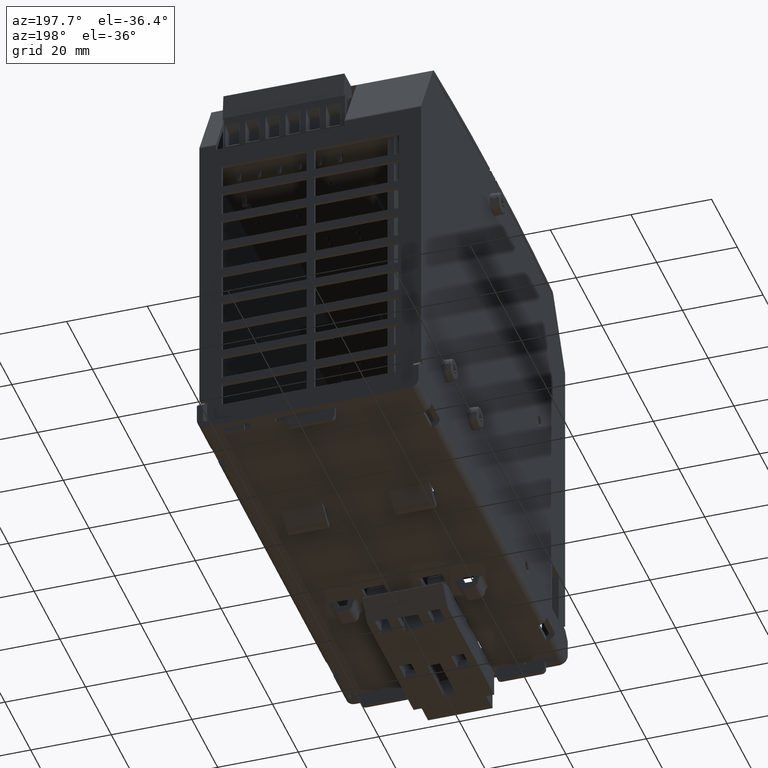
[diagram: clean part render]
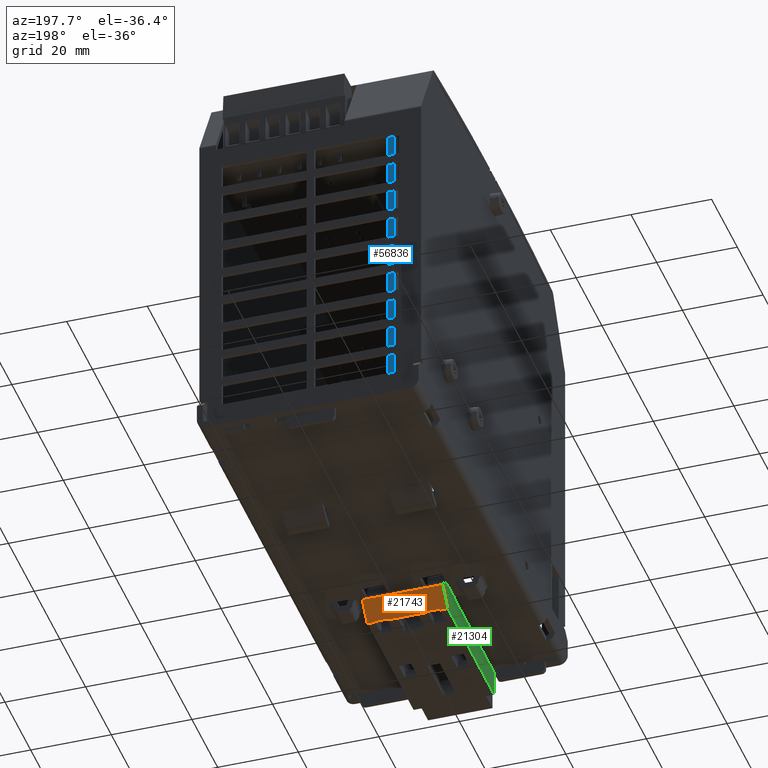
[diagram: same view with three faces highlighted in distinct colors, each labeled with its STEP entity id]
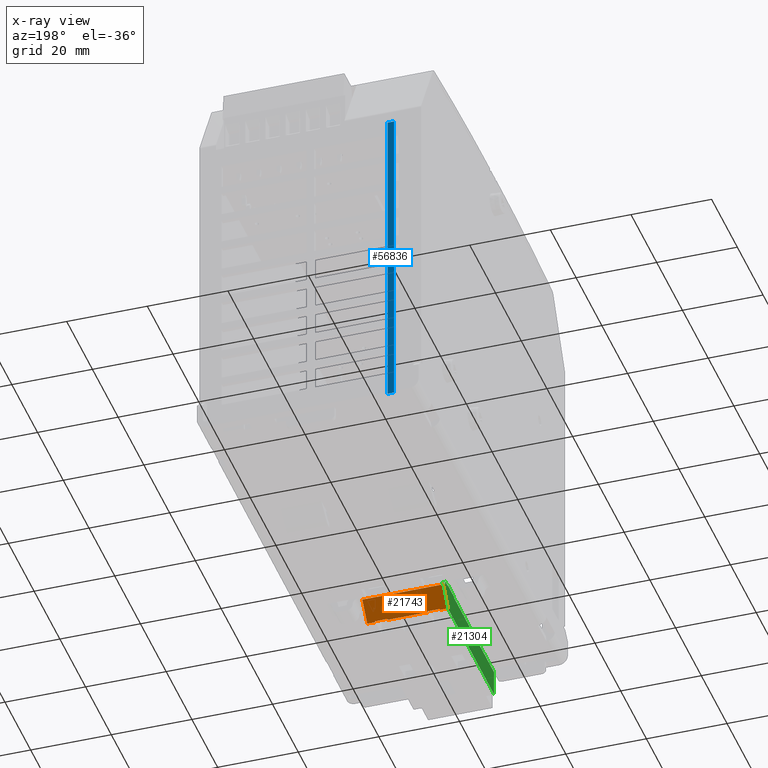
[diagram: x-ray of the same camera — body ghosted, the three highlighted faces saturated]
A machine part, auxiliary view with three faces highlighted in distinct colors.
The next image is the same camera in x-ray (body ghosted, the three faces saturated) — at least one of them is partly hidden behind the body in this view.
Their STEP definitions:

[orange] entity #21743 — the highlighted planar face has unit normal (0, -0.7431, 0.6691).
#20894=CARTESIAN_POINT('',(0.393700787401574,-0.773622047244094,-0.267716535433069));
#20895=VERTEX_POINT('',#20894);
#20902=CARTESIAN_POINT('',(0.393700787401574,-0.62007874015748,-0.097189417014413));
#20903=VERTEX_POINT('',#20902);
#20904=CARTESIAN_POINT('',(0.393700787401574,-0.773622047244094,-0.267716535433069));
#20905=DIRECTION('',(0.0,0.669130606358859,0.743144825477394));
#20906=VECTOR('',#20905,0.229466871829606);
#20907=LINE('',#20904,#20906);
#20908=EDGE_CURVE('',#20895,#20903,#20907,.T.);
#21223=CARTESIAN_POINT('',(-0.393700787401576,-0.62007874015748,-0.097189417014413));
#21224=VERTEX_POINT('',#21223);
#21232=CARTESIAN_POINT('',(-0.393700787401576,-0.773622047244094,-0.267716535433069));
#21233=VERTEX_POINT('',#21232);
#21234=CARTESIAN_POINT('',(-0.393700787401576,-0.62007874015748,-0.097189417014413));
#21235=DIRECTION('',(0.0,-0.669130606358859,-0.743144825477394));
#21236=VECTOR('',#21235,0.229466871829606);
#21237=LINE('',#21234,#21236);
#21238=EDGE_CURVE('',#21224,#21233,#21237,.T.);
#21654=CARTESIAN_POINT('',(0.393700787401574,-0.62007874015748,-0.097189417014413));
#21655=DIRECTION('',(-1.0,0.0,0.0));
#21656=VECTOR('',#21655,0.78740157480315);
#21657=LINE('',#21654,#21656);
#21658=EDGE_CURVE('',#20903,#21224,#21657,.T.);
#21663=CARTESIAN_POINT('',(0.393700787401574,-0.62007874015748,-0.097189417014413));
#21664=DIRECTION('',(5.500377E-017,-0.743144825477395,0.669130606358858));
#21665=DIRECTION('',(0.0,0.669130606358858,0.743144825477395));
#21666=AXIS2_PLACEMENT_3D('',#21663,#21664,#21665);
#21667=PLANE('',#21666);
#21668=CARTESIAN_POINT('',(-0.196850393700789,-0.76771653543307,-0.261157800109275));
#21669=VERTEX_POINT('',#21668);
#21670=CARTESIAN_POINT('',(-0.196850393700789,-0.773622047244094,-0.267716535433069));
#21671=VERTEX_POINT('',#21670);
#21672=CARTESIAN_POINT('',(-0.196850393700789,-0.76771653543307,-0.261157800109275));
#21673=DIRECTION('',(0.0,-0.669130606358885,-0.74314482547737));
#21674=VECTOR('',#21673,0.008825648916523);
#21675=LINE('',#21672,#21674);
#21676=EDGE_CURVE('',#21669,#21671,#21675,.T.);
#21677=ORIENTED_EDGE('',*,*,#21676,.F.);
#21678=CARTESIAN_POINT('',(-0.314960629921261,-0.76771653543307,-0.261157800109274));
#21679=VERTEX_POINT('',#21678);
#21680=CARTESIAN_POINT('',(-0.314960629921261,-0.76771653543307,-0.261157800109274));
#21681=DIRECTION('',(1.0,0.0,0.0));
#21682=VECTOR('',#21681,0.118110236220472);
#21683=LINE('',#21680,#21682);
#21684=EDGE_CURVE('',#21679,#21669,#21683,.T.);
#21685=ORIENTED_EDGE('',*,*,#21684,.F.);
#21686=CARTESIAN_POINT('',(-0.314960629921261,-0.773622047244094,-0.267716535433069));
#21687=VERTEX_POINT('',#21686);
#21688=CARTESIAN_POINT('',(-0.314960629921261,-0.773622047244094,-0.267716535433069));
#21689=DIRECTION('',(0.0,0.669130606358879,0.743144825477375));
#21690=VECTOR('',#21689,0.008825648916523);
#21691=LINE('',#21688,#21690);
#21692=EDGE_CURVE('',#21687,#21679,#21691,.T.);
#21693=ORIENTED_EDGE('',*,*,#21692,.F.);
#21694=CARTESIAN_POINT('',(-0.393700787401576,-0.773622047244094,-0.267716535433069));
#21695=DIRECTION('',(1.0,0.0,0.0));
#21696=VECTOR('',#21695,0.078740157480315);
#21697=LINE('',#21694,#21696);
#21698=EDGE_CURVE('',#21233,#21687,#21697,.T.);
#21699=ORIENTED_EDGE('',*,*,#21698,.F.);
#21700=ORIENTED_EDGE('',*,*,#21238,.F.);
#21701=ORIENTED_EDGE('',*,*,#21658,.F.);
#21702=ORIENTED_EDGE('',*,*,#20908,.F.);
#21703=CARTESIAN_POINT('',(0.314960629921259,-0.773622047244094,-0.267716535433069));
#21704=VERTEX_POINT('',#21703);
#21705=CARTESIAN_POINT('',(0.314960629921259,-0.773622047244094,-0.267716535433069));
#21706=DIRECTION('',(1.0,0.0,0.0));
#21707=VECTOR('',#21706,0.078740157480315);
#21708=LINE('',#21705,#21707);
#21709=EDGE_CURVE('',#21704,#20895,#21708,.T.);
#21710=ORIENTED_EDGE('',*,*,#21709,.F.);
#21711=CARTESIAN_POINT('',(0.314960629921259,-0.76771653543307,-0.261157800109275));
#21712=VERTEX_POINT('',#21711);
#21713=CARTESIAN_POINT('',(0.314960629921259,-0.76771653543307,-0.261157800109275));
#21714=DIRECTION('',(0.0,-0.669130606358895,-0.743144825477361));
#21715=VECTOR('',#21714,0.008825648916523);
#21716=LINE('',#21713,#21715);
#21717=EDGE_CURVE('',#21712,#21704,#21716,.T.);
#21718=ORIENTED_EDGE('',*,*,#21717,.F.);
#21719=CARTESIAN_POINT('',(0.196850393700786,-0.76771653543307,-0.261157800109275));
#21720=VERTEX_POINT('',#21719);
#21721=CARTESIAN_POINT('',(0.196850393700786,-0.76771653543307,-0.261157800109275));
#21722=DIRECTION('',(1.0,0.0,0.0));
#21723=VECTOR('',#21722,0.118110236220472);
#21724=LINE('',#21721,#21723);
#21725=EDGE_CURVE('',#21720,#21712,#21724,.T.);
#21726=ORIENTED_EDGE('',*,*,#21725,.F.);
#21727=CARTESIAN_POINT('',(0.196850393700786,-0.773622047244094,-0.267716535433069));
#21728=VERTEX_POINT('',#21727);
#21729=CARTESIAN_POINT('',(0.196850393700786,-0.773622047244094,-0.267716535433069));
#21730=DIRECTION('',(0.0,0.669130606358895,0.743144825477361));
#21731=VECTOR('',#21730,0.008825648916523);
#21732=LINE('',#21729,#21731);
#21733=EDGE_CURVE('',#21728,#21720,#21732,.T.);
#21734=ORIENTED_EDGE('',*,*,#21733,.F.);
#21735=CARTESIAN_POINT('',(-0.196850393700789,-0.773622047244094,-0.267716535433069));
#21736=DIRECTION('',(1.0,0.0,0.0));
#21737=VECTOR('',#21736,0.393700787401575);
#21738=LINE('',#21735,#21737);
#21739=EDGE_CURVE('',#21671,#21728,#21738,.T.);
#21740=ORIENTED_EDGE('',*,*,#21739,.F.);
#21741=EDGE_LOOP('',(#21677,#21685,#21693,#21699,#21700,#21701,#21702,#21710,#21718,#21726,#21734,#21740));
#21742=FACE_OUTER_BOUND('',#21741,.T.);
#21743=ADVANCED_FACE('',(#21742),#21667,.F.);

[blue] entity #56836 — the highlighted planar face has unit normal (0, 1, 0).
#27283=CARTESIAN_POINT('',(-0.70866141732277,2.058897637795275,3.169708661417326));
#27284=VERTEX_POINT('',#27283);
#32639=CARTESIAN_POINT('',(-0.70866141732277,2.058897637795275,3.232700787401578));
#32640=VERTEX_POINT('',#32639);
#42670=CARTESIAN_POINT('',(-0.70866141732277,2.058897637795276,3.169708661417326));
#42671=DIRECTION('',(0.0,0.0,1.0));
#42672=VECTOR('',#42671,0.062992125984252);
#42673=LINE('',#42670,#42672);
#42674=EDGE_CURVE('',#27284,#32640,#42673,.T.);
#55957=CARTESIAN_POINT('',(-0.70866141732277,2.058897637795275,3.288700787401578));
#55958=VERTEX_POINT('',#55957);
#55959=CARTESIAN_POINT('',(-0.70866141732277,2.058897637795276,3.232700787401578));
#55960=DIRECTION('',(0.0,0.0,1.0));
#55961=VECTOR('',#55960,0.056);
#55962=LINE('',#55959,#55961);
#55963=EDGE_CURVE('',#32640,#55958,#55962,.T.);
#56070=CARTESIAN_POINT('',(-0.70866141732277,2.058897637795276,0.154700787401577));
#56071=VERTEX_POINT('',#56070);
#56078=CARTESIAN_POINT('',(-0.70866141732277,2.058897637795276,0.154700787401577));
#56079=DIRECTION('',(0.0,0.0,1.0));
#56080=VECTOR('',#56079,3.015007874015748);
#56081=LINE('',#56078,#56080);
#56082=EDGE_CURVE('',#56071,#27284,#56081,.T.);
#56804=CARTESIAN_POINT('',(-0.70866141732277,2.058897637795275,3.227700787401576));
#56805=DIRECTION('',(0.0,1.0,0.0));
#56806=DIRECTION('',(1.0,0.0,0.0));
#56807=AXIS2_PLACEMENT_3D('',#56804,#56805,#56806);
#56808=PLANE('',#56807);
#56809=CARTESIAN_POINT('',(-0.771653543307022,2.058897637795276,0.154700787401577));
#56810=VERTEX_POINT('',#56809);
#56811=CARTESIAN_POINT('',(-0.771653543307022,2.058897637795275,3.288700787401578));
#56812=VERTEX_POINT('',#56811);
#56813=CARTESIAN_POINT('',(-0.771653543307022,2.058897637795276,0.154700787401577));
#56814=DIRECTION('',(0.0,0.0,1.0));
#56815=VECTOR('',#56814,3.134000000000001);
#56816=LINE('',#56813,#56815);
#56817=EDGE_CURVE('',#56810,#56812,#56816,.T.);
#56818=ORIENTED_EDGE('',*,*,#56817,.T.);
#56819=CARTESIAN_POINT('',(-0.70866141732277,2.058897637795275,3.288700787401578));
#56820=DIRECTION('',(-1.0,0.0,0.0));
#56821=VECTOR('',#56820,0.062992125984252);
#56822=LINE('',#56819,#56821);
#56823=EDGE_CURVE('',#55958,#56812,#56822,.T.);
#56824=ORIENTED_EDGE('',*,*,#56823,.F.);
#56825=ORIENTED_EDGE('',*,*,#55963,.F.);
#56826=ORIENTED_EDGE('',*,*,#42674,.F.);
#56827=ORIENTED_EDGE('',*,*,#56082,.F.);
#56828=CARTESIAN_POINT('',(-0.70866141732277,2.058897637795276,0.154700787401577));
#56829=DIRECTION('',(-1.0,0.0,0.0));
#56830=VECTOR('',#56829,0.062992125984252);
#56831=LINE('',#56828,#56830);
#56832=EDGE_CURVE('',#56071,#56810,#56831,.T.);
#56833=ORIENTED_EDGE('',*,*,#56832,.T.);
#56834=EDGE_LOOP('',(#56818,#56824,#56825,#56826,#56827,#56833));
#56835=FACE_OUTER_BOUND('',#56834,.T.);
#56836=ADVANCED_FACE('',(#56835),#56808,.T.);

[green] entity #21304 — the highlighted planar face has unit normal (-1, 0, 0).
#21168=CARTESIAN_POINT('',(-0.393700787401576,-0.610236220472441,-0.011811023622045));
#21169=DIRECTION('',(-1.0,0.0,0.0));
#21170=DIRECTION('',(0.0,0.0,1.0));
#21171=AXIS2_PLACEMENT_3D('',#21168,#21169,#21170);
#21172=PLANE('',#21171);
#21173=CARTESIAN_POINT('',(-0.393700787401576,-0.76771653543307,2.108987E-015));
#21174=VERTEX_POINT('',#21173);
#21175=CARTESIAN_POINT('',(-0.393700787401576,-0.964566929133858,2.108987E-015));
#21176=VERTEX_POINT('',#21175);
#21177=CARTESIAN_POINT('',(-0.393700787401576,-0.76771653543307,2.108987E-015));
#21178=DIRECTION('',(0.0,-1.0,0.0));
#21179=VECTOR('',#21178,0.196850393700787);
#21180=LINE('',#21177,#21179);
#21181=EDGE_CURVE('',#21174,#21176,#21180,.T.);
#21182=ORIENTED_EDGE('',*,*,#21181,.F.);
#21183=CARTESIAN_POINT('',(-0.393700787401576,-0.76771653543307,-0.011811023622045));
#21184=VERTEX_POINT('',#21183);
#21185=CARTESIAN_POINT('',(-0.393700787401576,-0.76771653543307,-0.011811023622045));
#21186=DIRECTION('',(0.0,0.0,1.0));
#21187=VECTOR('',#21186,0.011811023622047);
#21188=LINE('',#21185,#21187);
#21189=EDGE_CURVE('',#21184,#21174,#21188,.T.);
#21190=ORIENTED_EDGE('',*,*,#21189,.F.);
#21191=CARTESIAN_POINT('',(-0.393700787401576,-0.688976377952755,-0.011811023622045));
#21192=VERTEX_POINT('',#21191);
#21193=CARTESIAN_POINT('',(-0.393700787401576,-0.76771653543307,-0.011811023622045));
#21194=DIRECTION('',(0.0,1.0,0.0));
#21195=VECTOR('',#21194,0.078740157480315);
#21196=LINE('',#21193,#21195);
#21197=EDGE_CURVE('',#21184,#21192,#21196,.T.);
#21198=ORIENTED_EDGE('',*,*,#21197,.T.);
#21199=CARTESIAN_POINT('',(-0.393700787401576,-0.688976377952755,-0.051181102362203));
#21200=VERTEX_POINT('',#21199);
#21201=CARTESIAN_POINT('',(-0.393700787401576,-0.688976377952755,-0.011811023622045));
#21202=DIRECTION('',(0.0,0.0,-1.0));
#21203=VECTOR('',#21202,0.039370078740157);
#21204=LINE('',#21201,#21203);
#21205=EDGE_CURVE('',#21192,#21200,#21204,.T.);
#21206=ORIENTED_EDGE('',*,*,#21205,.T.);
#21207=CARTESIAN_POINT('',(-0.393700787401576,-0.635643877434733,-0.061547890299983));
#21208=VERTEX_POINT('',#21207);
#21209=CARTESIAN_POINT('',(-0.393700787401576,-0.688976377952755,-0.051181102362203));
#21210=DIRECTION('',(0.0,0.981627183447664,-0.190808995376545));
#21211=VECTOR('',#21210,0.054330708661417);
#21212=LINE('',#21209,#21211);
#21213=EDGE_CURVE('',#21200,#21208,#21212,.T.);
#21214=ORIENTED_EDGE('',*,*,#21213,.T.);
#21215=CARTESIAN_POINT('',(-0.393700787401576,-0.610236220472441,-0.082867445886122));
#21216=VERTEX_POINT('',#21215);
#21217=CARTESIAN_POINT('',(-0.393700787401576,-0.635643877434733,-0.061547890299983));
#21218=DIRECTION('',(0.0,0.766044443118975,-0.642787609686543));
#21219=VECTOR('',#21218,0.03316734060343);
#21220=LINE('',#21217,#21219);
#21221=EDGE_CURVE('',#21208,#21216,#21220,.T.);
#21222=ORIENTED_EDGE('',*,*,#21221,.T.);
#21223=CARTESIAN_POINT('',(-0.393700787401576,-0.62007874015748,-0.097189417014413));
#21224=VERTEX_POINT('',#21223);
#21225=CARTESIAN_POINT('',(-0.393700787401576,-0.669536648956529,-0.052657315909236));
#21226=DIRECTION('',(-1.0,0.0,0.0));
#21227=DIRECTION('',(0.0,0.743144825477394,-0.669130606358858));
#21228=AXIS2_PLACEMENT_3D('',#21225,#21226,#21227);
#21229=CIRCLE('',#21228,0.066552180817887);
#21230=EDGE_CURVE('',#21216,#21224,#21229,.T.);
#21231=ORIENTED_EDGE('',*,*,#21230,.T.);
#21232=CARTESIAN_POINT('',(-0.393700787401576,-0.773622047244094,-0.267716535433069));
#21233=VERTEX_POINT('',#21232);
#21234=CARTESIAN_POINT('',(-0.393700787401576,-0.62007874015748,-0.097189417014413));
#21235=DIRECTION('',(0.0,-0.669130606358859,-0.743144825477394));
#21236=VECTOR('',#21235,0.229466871829606);
#21237=LINE('',#21234,#21236);
#21238=EDGE_CURVE('',#21224,#21233,#21237,.T.);
#21239=ORIENTED_EDGE('',*,*,#21238,.T.);
#21240=CARTESIAN_POINT('',(-0.393700787401576,-2.190944881889764,-0.267716535433069));
#21241=VERTEX_POINT('',#21240);
#21242=CARTESIAN_POINT('',(-0.393700787401576,-0.773622047244094,-0.267716535433069));
#21243=DIRECTION('',(0.0,-1.0,0.0));
#21244=VECTOR('',#21243,1.41732283464567);
#21245=LINE('',#21242,#21244);
#21246=EDGE_CURVE('',#21233,#21241,#21245,.T.);
#21247=ORIENTED_EDGE('',*,*,#21246,.T.);
#21248=CARTESIAN_POINT('',(-0.393700787401576,-2.190944881889764,-0.011811023622045));
#21249=VERTEX_POINT('',#21248);
#21250=CARTESIAN_POINT('',(-0.393700787401576,-2.190944881889764,-0.267716535433069));
#21251=DIRECTION('',(0.0,0.0,1.0));
#21252=VECTOR('',#21251,0.255905511811024);
#21253=LINE('',#21250,#21252);
#21254=EDGE_CURVE('',#21241,#21249,#21253,.T.);
#21255=ORIENTED_EDGE('',*,*,#21254,.T.);
#21256=CARTESIAN_POINT('',(-0.393700787401576,-1.692913385826771,-0.011811023622045));
#21257=VERTEX_POINT('',#21256);
#21258=CARTESIAN_POINT('',(-0.393700787401576,-2.190944881889764,-0.011811023622045));
#21259=DIRECTION('',(0.0,1.0,0.0));
#21260=VECTOR('',#21259,0.498031496062992);
#21261=LINE('',#21258,#21260);
#21262=EDGE_CURVE('',#21249,#21257,#21261,.T.);
#21263=ORIENTED_EDGE('',*,*,#21262,.T.);
#21264=CARTESIAN_POINT('',(-0.393700787401576,-1.692913385826771,2.108987E-015));
#21265=VERTEX_POINT('',#21264);
#21266=CARTESIAN_POINT('',(-0.393700787401576,-1.692913385826771,-0.011811023622045));
#21267=DIRECTION('',(0.0,0.0,1.0));
#21268=VECTOR('',#21267,0.011811023622047);
#21269=LINE('',#21266,#21268);
#21270=EDGE_CURVE('',#21257,#21265,#21269,.T.);
#21271=ORIENTED_EDGE('',*,*,#21270,.T.);
#21272=CARTESIAN_POINT('',(-0.393700787401576,-1.496062992125984,2.108987E-015));
#21273=VERTEX_POINT('',#21272);
#21274=CARTESIAN_POINT('',(-0.393700787401576,-1.496062992125984,2.108987E-015));
#21275=DIRECTION('',(0.0,-1.0,0.0));
#21276=VECTOR('',#21275,0.196850393700788);
#21277=LINE('',#21274,#21276);
#21278=EDGE_CURVE('',#21273,#21265,#21277,.T.);
#21279=ORIENTED_EDGE('',*,*,#21278,.F.);
#21280=CARTESIAN_POINT('',(-0.393700787401576,-1.496062992125984,-0.011811023622045));
#21281=VERTEX_POINT('',#21280);
#21282=CARTESIAN_POINT('',(-0.393700787401576,-1.496062992125984,-0.011811023622045));
#21283=DIRECTION('',(0.0,0.0,1.0));
#21284=VECTOR('',#21283,0.011811023622047);
#21285=LINE('',#21282,#21284);
#21286=EDGE_CURVE('',#21281,#21273,#21285,.T.);
#21287=ORIENTED_EDGE('',*,*,#21286,.F.);
#21288=CARTESIAN_POINT('',(-0.393700787401576,-0.964566929133858,-0.011811023622045));
#21289=VERTEX_POINT('',#21288);
#21290=CARTESIAN_POINT('',(-0.393700787401576,-1.496062992125984,-0.011811023622045));
#21291=DIRECTION('',(0.0,1.0,0.0));
#21292=VECTOR('',#21291,0.531496062992126);
#21293=LINE('',#21290,#21292);
#21294=EDGE_CURVE('',#21281,#21289,#21293,.T.);
#21295=ORIENTED_EDGE('',*,*,#21294,.T.);
#21296=CARTESIAN_POINT('',(-0.393700787401576,-0.964566929133858,-0.011811023622045));
#21297=DIRECTION('',(0.0,0.0,1.0));
#21298=VECTOR('',#21297,0.011811023622047);
#21299=LINE('',#21296,#21298);
#21300=EDGE_CURVE('',#21289,#21176,#21299,.T.);
#21301=ORIENTED_EDGE('',*,*,#21300,.T.);
#21302=EDGE_LOOP('',(#21182,#21190,#21198,#21206,#21214,#21222,#21231,#21239,#21247,#21255,#21263,#21271,#21279,#21287,#21295,#21301));
#21303=FACE_OUTER_BOUND('',#21302,.T.);
#21304=ADVANCED_FACE('',(#21303),#21172,.T.);